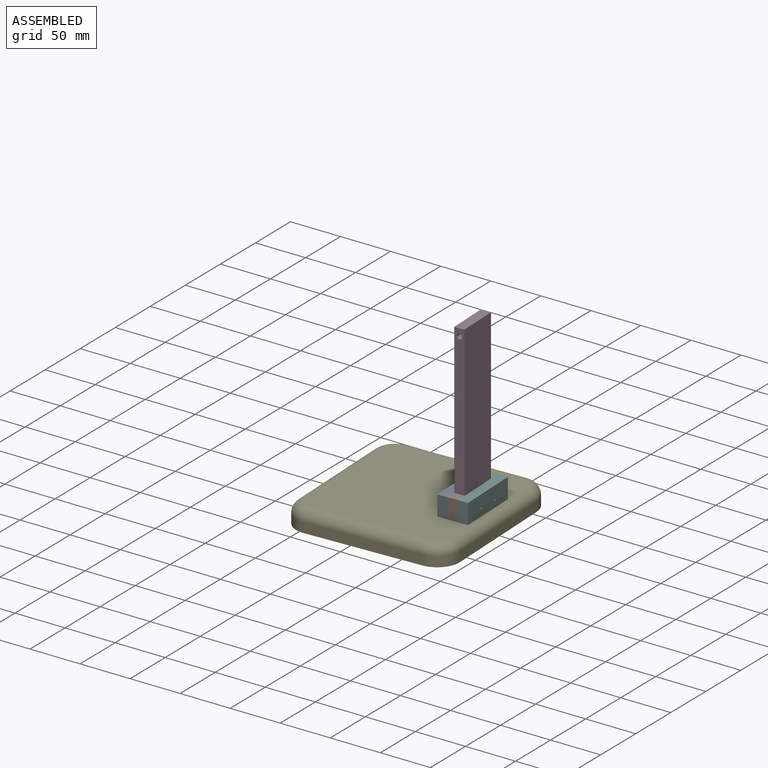
[diagram: assembled view]
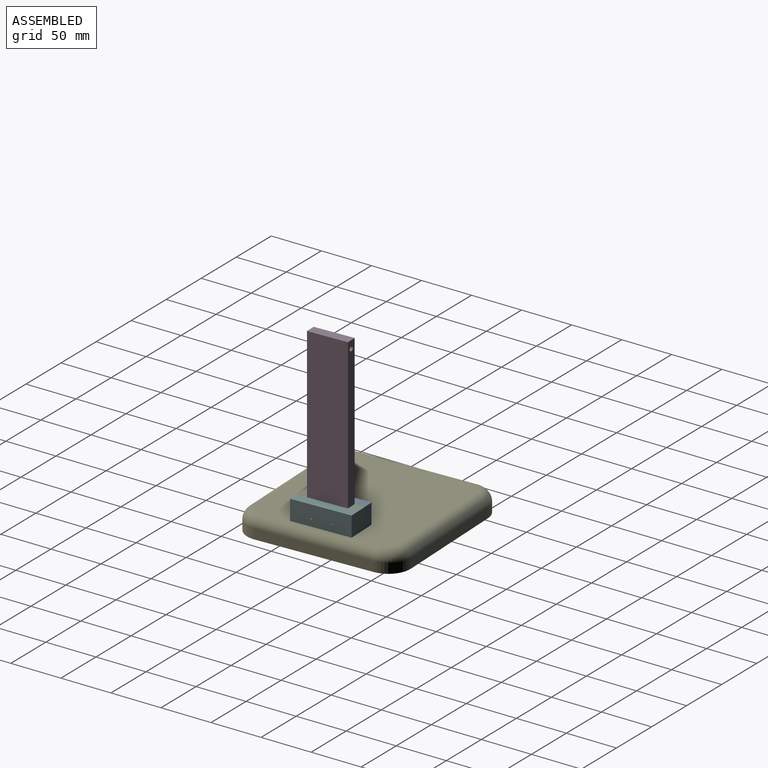
[diagram: assembled view, second angle]
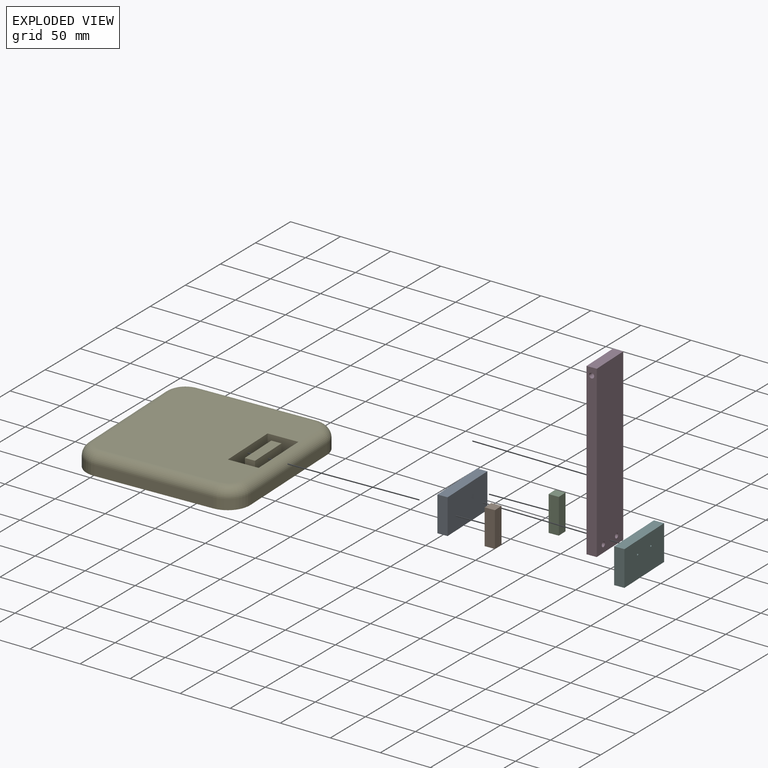
[diagram: exploded view]
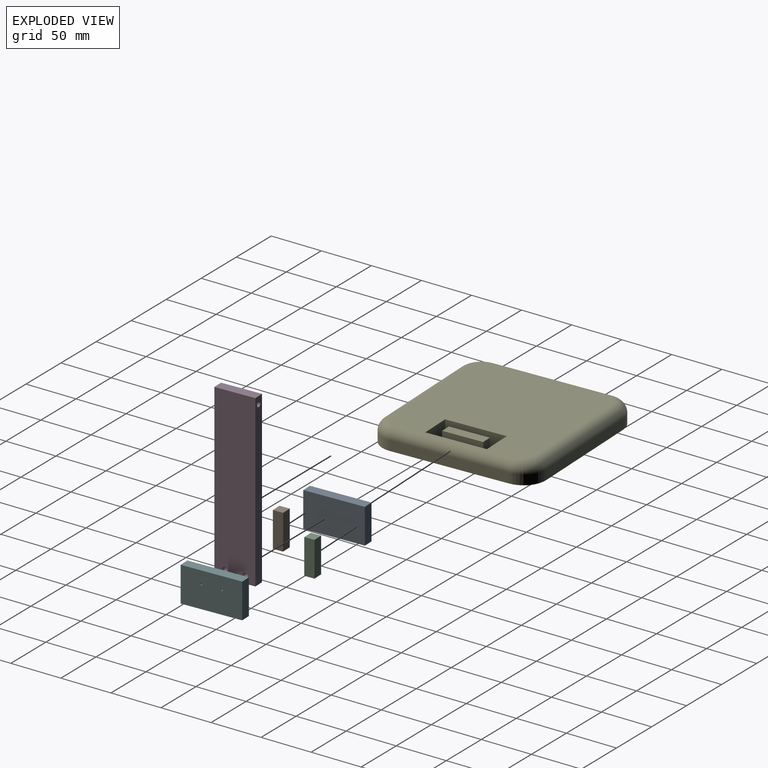
[diagram: exploded view, second angle]
ASSEMBLY  parts=6 mates=5
PART A: 6 faces, bbox 10x60x35 mm
  f0: plane 60x35mm, normal (1,0,0), area 2100mm2, adj f1,f3,f4,f5
  f1: plane 35x10mm, normal (0,1,0), area 350mm2, adj f0,f2,f4,f5
  f2: plane 60x35mm, normal (-1,0,0), area 2100mm2, adj f1,f3,f4,f5
  f3: plane 35x10mm, normal (0,-1,0), area 350mm2, adj f0,f2,f4,f5
  f4: plane 60x10mm, normal (0,0,1), area 600mm2, adj f0,f1,f2,f3
  f5: plane 60x10mm, normal (0,0,-1), area 600mm2, adj f0,f1,f2,f3
PART B: 6 faces, bbox 10x10x35 mm
  f0: plane 35x10mm, normal (-1,0,0), area 350mm2, adj f1,f3,f4,f5
  f1: plane 35x10mm, normal (0,-1,0), area 350mm2, adj f0,f2,f4,f5
  f2: plane 35x10mm, normal (1,0,0), area 350mm2, adj f1,f3,f4,f5
  f3: plane 35x10mm, normal (0,1,0), area 350mm2, adj f0,f2,f4,f5
  f4: plane 10x10mm, normal (0,0,1), area 100mm2, adj f0,f1,f2,f3
  f5: plane 10x10mm, normal (0,0,-1), area 100mm2, adj f0,f1,f2,f3
PART C: 6 faces, bbox 10x10x35 mm
  f0: plane 35x10mm, normal (1,0,0), area 350mm2, adj f1,f3,f4,f5
  f1: plane 35x10mm, normal (0,1,0), area 350mm2, adj f0,f2,f4,f5
  f2: plane 35x10mm, normal (-1,0,0), area 350mm2, adj f1,f3,f4,f5
  f3: plane 35x10mm, normal (0,-1,0), area 350mm2, adj f0,f2,f4,f5
  f4: plane 10x10mm, normal (0,0,1), area 100mm2, adj f0,f1,f2,f3
  f5: plane 10x10mm, normal (0,0,-1), area 100mm2, adj f0,f1,f2,f3
PART D: 9 faces, bbox 40x10x170 mm
  f0: plane 40x10mm, normal (0,0,-1), area 400mm2, adj f1,f3,f4,f5
  f1: plane 170x10mm, normal (1,0,0), area 1680.4mm2, adj f0,f2,f4,f5,f6
  f2: plane 40x10mm, normal (0,0,1), area 400mm2, adj f1,f3,f4,f5
  f3: plane 170x10mm, normal (-1,0,0), area 1680.4mm2, adj f0,f2,f4,f5,f6
  f4: plane 170x40mm, normal (0,-1,0), area 6764.4mm2, adj f0,f1,f2,f3,f7,f8
  f5: plane 170x40mm, normal (0,1,0), area 6764.4mm2, adj f0,f1,f2,f3,f7,f8
  f6: cylinder r=2.5mm len=40mm, axis (-1,0,0), area 628.3mm2, adj f1,f3
  f7: cylinder r=2.36mm len=10mm, axis (0,-1,0), area 148.5mm2, adj f4,f5
  f8: cylinder r=2.39mm len=10mm, axis (0,-1,0), area 150.4mm2, adj f4,f5
PART E: 28 faces, bbox 163.6x163.6x20 mm
  f0: plane 116x10mm, normal (0,-1,0), area 1160mm2, adj f5,f6,f9,f12
  f1: plane 116x10mm, normal (1,0,0), area 1160mm2, adj f5,f6,f7,f11
  f2: plane 116x10mm, normal (0,1,0), area 1160mm2, adj f5,f7,f8,f15
  f3: plane 116x10mm, normal (-1,0,0), area 1160mm2, adj f5,f8,f9,f16
  f4: plane 140x140mm, normal (0,0,1), area 17676.4mm2, adj f10,f11,f12,f13,f14,f15,f16,f17
  f5: plane 160x160mm, normal (0,0,-1), area 25184.5mm2, adj f0,f1,f2,f3,f6,f7,f8,f9
  f6: cylinder r=22mm len=22mm, axis (0,0,1), area 345.6mm2, adj f0,f1,f5,f10
  f7: cylinder r=22mm len=22mm, axis (0,0,-1), area 345.6mm2, adj f1,f2,f5,f13
  f8: cylinder r=22mm len=22mm, axis (0,0,1), area 345.6mm2, adj f2,f3,f5,f17
  f9: cylinder r=22mm len=22mm, axis (0,0,-1), area 345.6mm2, adj f0,f3,f5,f14
  f10: torus R=12mm, axis (0,0,1), area 453.2mm2, adj f4,f6,f11,f12
  f11: cylinder r=10mm len=116mm, axis (0,-1,0), area 1822.1mm2, adj f1,f4,f10,f13
  f12: cylinder r=10mm len=116mm, axis (-1,0,0), area 1822.1mm2, adj f0,f4,f10,f14
  f13: torus R=12mm, axis (0,0,1), area 453.2mm2, adj f4,f7,f11,f15
  f14: torus R=12mm, axis (0,0,1), area 453.2mm2, adj f4,f9,f12,f16
  f15: cylinder r=10mm len=116mm, axis (1,0,0), area 1822.1mm2, adj f2,f4,f13,f17
  f16: cylinder r=10mm len=116mm, axis (0,1,0), area 1822.1mm2, adj f3,f4,f14,f17,f18
  f17: torus R=12mm, axis (0,0,1), area 453.2mm2, adj f4,f8,f15,f16
  f18: plane 60x15mm, normal (1,0,0), area 900mm2, adj f16,f19,f25,f26
  f19: plane 30x15mm, normal (0,1,0), area 450mm2, adj f4,f18,f20,f26
  f20: plane 60x15mm, normal (-1,0,0), area 900mm2, adj f4,f19,f25,f26
  f21: plane 40x15mm, normal (1,0,0), area 600mm2, adj f22,f24,f26,f27
  f22: plane 15x10mm, normal (0,-1,0), area 150mm2, adj f21,f23,f26,f27
  f23: plane 40x15mm, normal (-1,0,0), area 600mm2, adj f22,f24,f26,f27
  f24: plane 15x10mm, normal (0,1,0), area 150mm2, adj f21,f23,f26,f27
  f25: plane 30x15mm, normal (0,-1,0), area 450mm2, adj f4,f18,f20,f26
  f26: plane 60x30mm, normal (0,0,1), area 1400mm2, adj f18,f19,f20,f21,f22,f23,f24,f25
  f27: plane 40x10mm, normal (0,0,1), area 400mm2, adj f21,f22,f23,f24
PART F: 8 faces, bbox 10x60x35 mm
  f0: plane 35x10mm, normal (0,1,0), area 350mm2, adj f1,f3,f4,f5
  f1: plane 60x35mm, normal (-1,0,0), area 2093.7mm2, adj f0,f2,f4,f5,f6,f7
  f2: plane 35x10mm, normal (0,-1,0), area 350mm2, adj f1,f3,f4,f5
  f3: plane 60x35mm, normal (1,0,0), area 2093.7mm2, adj f0,f2,f4,f5,f6,f7
  f4: plane 60x10mm, normal (0,0,1), area 600mm2, adj f0,f1,f2,f3
  f5: plane 60x10mm, normal (0,0,-1), area 600mm2, adj f0,f1,f2,f3
  f6: cylinder r=1mm len=10mm, axis (1,0,0), area 62.8mm2, adj f1,f3
  f7: cylinder r=1mm len=10mm, axis (1,0,0), area 62.8mm2, adj f1,f3
PLACE A rot(axis=(0,0,1),2.2deg) t=(75.05,-11.17,3.88)mm
PLACE B rot(axis=(0,0,1),2.2deg) t=(75.05,-11.17,3.88)mm
PLACE C rot(axis=(0,0,1),2.2deg) t=(75.05,-11.17,3.88)mm
PLACE D rot(axis=(0,0,1),92.2deg) t=(70.06,-11.36,103.88)mm
PLACE E rot(axis=(0,0,-1),177.8deg) t=(15.09,-13.44,8.88)mm fixed
PLACE F rot(axis=(0,0,1),2.2deg) t=(75.05,-11.17,3.88)mm
MATE fastened F.f1 <-> B.f2  axis (-1,-0.04,0) through (76.19,-41.15,21.38)mm
MATE fastened E.f27 <-> D.f0  axis (0,0,1) through (70.81,-31.35,18.88)mm
MATE fastened A.f0 <-> B.f0  axis (1,0.04,0) through (66.2,-41.53,38.88)mm
MATE fastened F.f1 <-> C.f0  axis (-1,-0.04,0) through (73.92,18.81,21.38)mm
MATE fastened A.f2 <-> E.f20  axis (-1,-0.04,0) through (53.93,18.05,3.88)mm
